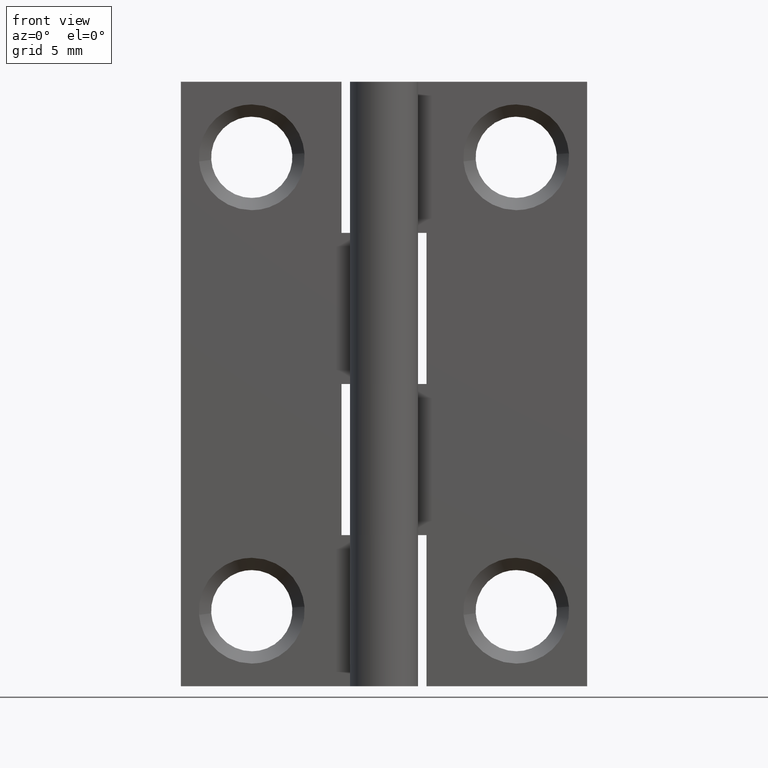
[diagram: clean part render]
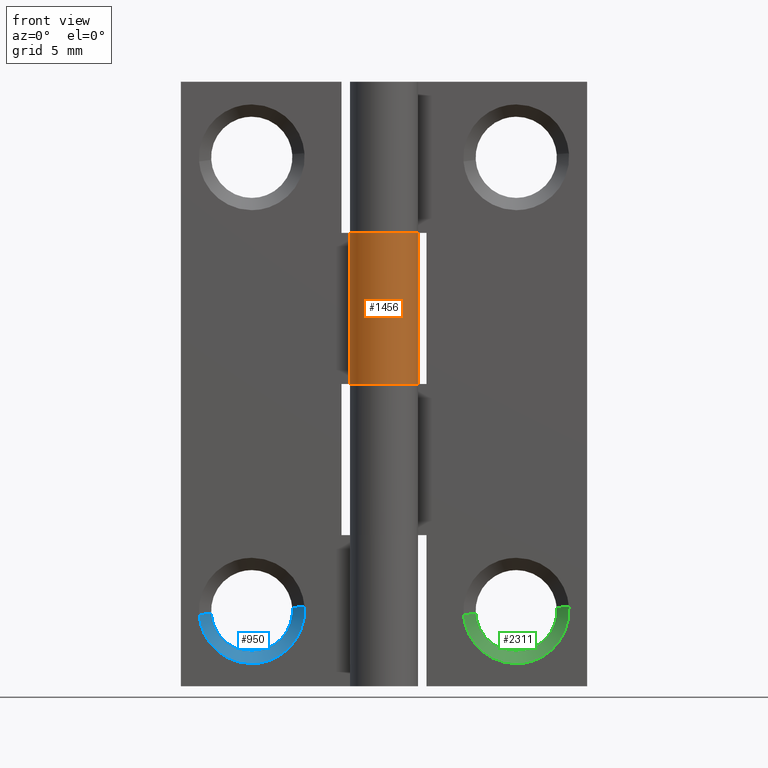
[diagram: same view with three faces highlighted in distinct colors, each labeled with its STEP entity id]
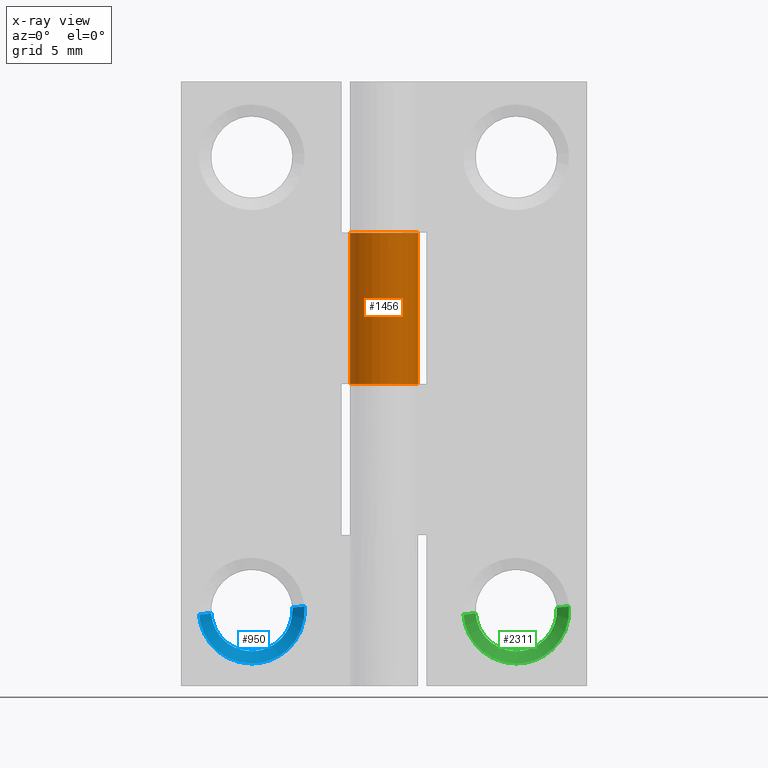
[diagram: x-ray of the same camera — body ghosted, the three highlighted faces saturated]
A machine part, front view with three faces highlighted in distinct colors.
The next image is the same camera in x-ray (body ghosted, the three faces saturated) — at least one of them is partly hidden behind the body in this view.
Their STEP definitions:

[orange] entity #1456 — the highlighted face is a freeform B-spline surface patch.
#1020=CARTESIAN_POINT('',(-1.528888485142075,0.949999999999986,24.0));
#1021=VERTEX_POINT('',#1020);
#1027=CARTESIAN_POINT('',(0.0,1.799999000000000,24.0));
#1028=VERTEX_POINT('',#1027);
#1029=CARTESIAN_POINT('',(0.0,1.799999000000000,24.0));
#1030=CARTESIAN_POINT('',(1.392801052929096,1.799998304105395,24.000000000000011));
#1031=CARTESIAN_POINT('',(1.742381113599921,0.451781698599382,24.0));
#1032=CARTESIAN_POINT('',(2.091961174270749,-0.896434906906632,24.000000000000011));
#1033=CARTESIAN_POINT('',(0.874642784226802,-1.573213772255223,24.0));
#1034=CARTESIAN_POINT('',(-0.342675605817144,-2.249992637603815,24.000000000000011));
#1035=CARTESIAN_POINT('',(-1.303326767780338,-1.241506385276014,24.0));
#1036=CARTESIAN_POINT('',(-2.263977929743532,-0.233020132948214,24.000000000000011));
#1037=CARTESIAN_POINT('',(-1.528888485142075,0.949999999999986,24.0));
#1045=(BOUNDED_CURVE()B_SPLINE_CURVE(2,(#1029,#1030,#1031,#1032,#1033,#1034,#1035,#1036,#1037),.UNSPECIFIED.,.F.,.U.)B_SPLINE_CURVE_WITH_KNOTS((3,2,2,2,3),(0.0,0.250000000000000,0.500000000000000,0.750000000000000,1.0),.UNSPECIFIED.)CURVE()GEOMETRIC_REPRESENTATION_ITEM()RATIONAL_B_SPLINE_CURVE((1.0,0.790882628363956,1.0,0.790882628363956,1.0,0.790882628363956,1.0,0.790882628363956,1.0))REPRESENTATION_ITEM(''));
#1046=EDGE_CURVE('',#1028,#1021,#1045,.T.);
#1048=CARTESIAN_POINT('',(-0.001897366346216,1.799999000000000,24.0));
#1049=VERTEX_POINT('',#1048);
#1050=CARTESIAN_POINT('',(-0.001897366346216,1.799999000000000,24.0));
#1051=CARTESIAN_POINT('',(0.0,1.799999000000000,24.0));
#1052=QUASI_UNIFORM_CURVE('',1,(#1050,#1051),.UNSPECIFIED.,.F.,.U.);
#1053=EDGE_CURVE('',#1049,#1028,#1052,.T.);
#1183=CARTESIAN_POINT('',(-0.001897366346216,1.799998999999940,16.0));
#1184=VERTEX_POINT('',#1183);
#1190=CARTESIAN_POINT('',(0.0,1.799998999999940,16.0));
#1191=VERTEX_POINT('',#1190);
#1192=CARTESIAN_POINT('',(-0.001897366346216,1.799998999999940,16.0));
#1193=CARTESIAN_POINT('',(0.0,1.799998999999940,16.0));
#1194=QUASI_UNIFORM_CURVE('',1,(#1192,#1193),.UNSPECIFIED.,.F.,.U.);
#1195=EDGE_CURVE('',#1184,#1191,#1194,.T.);
#1197=CARTESIAN_POINT('',(-1.528888485142075,0.949999999999986,16.0));
#1198=VERTEX_POINT('',#1197);
#1199=CARTESIAN_POINT('',(0.0,1.799998999999940,16.0));
#1200=CARTESIAN_POINT('',(1.392801052929096,1.799998304105293,15.999999999999998));
#1201=CARTESIAN_POINT('',(1.742381113599921,0.451781698599292,16.0));
#1202=CARTESIAN_POINT('',(2.091961174270749,-0.896434906906709,15.999999999999998));
#1203=CARTESIAN_POINT('',(0.874642784226802,-1.573213772255253,16.0));
#1204=CARTESIAN_POINT('',(-0.342675605817144,-2.249992637603797,15.999999999999998));
#1205=CARTESIAN_POINT('',(-1.303326767780338,-1.241506385275984,16.0));
#1206=CARTESIAN_POINT('',(-2.263977929743532,-0.233020132948172,15.999999999999998));
#1207=CARTESIAN_POINT('',(-1.528888485142075,0.949999999999986,16.0));
#1215=(BOUNDED_CURVE()B_SPLINE_CURVE(2,(#1199,#1200,#1201,#1202,#1203,#1204,#1205,#1206,#1207),.UNSPECIFIED.,.F.,.U.)B_SPLINE_CURVE_WITH_KNOTS((3,2,2,2,3),(0.0,0.250000000000000,0.500000000000000,0.750000000000000,1.0),.UNSPECIFIED.)CURVE()GEOMETRIC_REPRESENTATION_ITEM()RATIONAL_B_SPLINE_CURVE((1.0,0.790882628363956,1.0,0.790882628363956,1.0,0.790882628363956,1.0,0.790882628363956,1.0))REPRESENTATION_ITEM(''));
#1216=EDGE_CURVE('',#1191,#1198,#1215,.T.);
#1418=CARTESIAN_POINT('',(-0.017605049270856,1.799913904118797,15.800000000000001));
#1419=CARTESIAN_POINT('',(-0.017605049270856,1.799913904118797,24.205000000000009));
#1420=CARTESIAN_POINT('',(2.191930709917128,1.821525485549002,15.800000000000001));
#1421=CARTESIAN_POINT('',(2.191930709917128,1.821525485549002,24.205000000000005));
#1422=CARTESIAN_POINT('',(1.766288852308502,-0.346732880198450,15.800000000000001));
#1423=CARTESIAN_POINT('',(1.766288852308502,-0.346732880198450,24.205000000000009));
#1424=CARTESIAN_POINT('',(1.340646994699876,-2.514991245945901,15.800000000000001));
#1425=CARTESIAN_POINT('',(1.340646994699876,-2.514991245945901,24.205000000000005));
#1426=CARTESIAN_POINT('',(-0.696744238231076,-1.659682941555945,15.800000000000001));
#1427=CARTESIAN_POINT('',(-0.696744238231076,-1.659682941555945,24.205000000000009));
#1428=CARTESIAN_POINT('',(-2.734135471162029,-0.804374637165988,15.800000000000001));
#1429=CARTESIAN_POINT('',(-2.734135471162029,-0.804374637165988,24.205000000000005));
#1430=CARTESIAN_POINT('',(-1.484500995525655,1.017966990763126,15.800000000000001));
#1431=CARTESIAN_POINT('',(-1.484500995525655,1.017966990763126,24.205000000000009));
#1439=(BOUNDED_SURFACE()B_SPLINE_SURFACE(1,2,((#1418,#1420,#1422,#1424,#1426,#1428,#1430),(#1419,#1421,#1423,#1425,#1427,#1429,#1431)),.UNSPECIFIED.,.F.,.F.,.U.)B_SPLINE_SURFACE_WITH_KNOTS((2,2),(3,2,2,3),(0.0,8.405000000000007),(0.0,3.421378328518648,6.842756657037295,10.264134985555939),.UNSPECIFIED.)GEOMETRIC_REPRESENTATION_ITEM()RATIONAL_B_SPLINE_SURFACE(((1.0,0.631578351302498,1.0,0.631578351302498,1.0,0.631578351302498,1.0),(1.0,0.631578351302498,1.0,0.631578351302498,1.0,0.631578351302498,1.0)))REPRESENTATION_ITEM('')SURFACE());
#1440=ORIENTED_EDGE('',*,*,#1053,.T.);
#1441=ORIENTED_EDGE('',*,*,#1046,.T.);
#1442=CARTESIAN_POINT('',(-1.528888485142075,0.949999999999986,16.0));
#1443=CARTESIAN_POINT('',(-1.528888485142075,0.949999999999986,24.0));
#1444=QUASI_UNIFORM_CURVE('',1,(#1442,#1443),.UNSPECIFIED.,.F.,.U.);
#1445=EDGE_CURVE('',#1198,#1021,#1444,.T.);
#1446=ORIENTED_EDGE('',*,*,#1445,.F.);
#1447=ORIENTED_EDGE('',*,*,#1216,.F.);
#1448=ORIENTED_EDGE('',*,*,#1195,.F.);
#1449=CARTESIAN_POINT('',(-0.001897366346216,1.799998999999940,16.0));
#1450=CARTESIAN_POINT('',(-0.001897366346216,1.799999000000000,24.0));
#1451=QUASI_UNIFORM_CURVE('',1,(#1449,#1450),.UNSPECIFIED.,.F.,.U.);
#1452=EDGE_CURVE('',#1184,#1049,#1451,.T.);
#1453=ORIENTED_EDGE('',*,*,#1452,.T.);
#1454=EDGE_LOOP('',(#1440,#1441,#1446,#1447,#1448,#1453));
#1455=FACE_OUTER_BOUND('',#1454,.T.);
#1456=ADVANCED_FACE('',(#1455),#1439,.T.);

[blue] entity #950 — the highlighted face is a freeform B-spline surface patch.
#641=CARTESIAN_POINT('',(-4.864041251879778,1.650000035762785,3.754683572831546));
#642=VERTEX_POINT('',#641);
#643=CARTESIAN_POINT('',(-7.0,1.650000035762785,1.850000023841860));
#644=VERTEX_POINT('',#643);
#645=CARTESIAN_POINT('',(-4.864041251879778,1.650000035762785,3.754683572831545));
#646=CARTESIAN_POINT('',(-5.082795558995315,1.650000035762784,1.850000023841861));
#647=CARTESIAN_POINT('',(-7.0,1.650000035762785,1.850000023841860));
#655=(BOUNDED_CURVE()B_SPLINE_CURVE(2,(#645,#646,#647),.UNSPECIFIED.,.F.,.U.)B_SPLINE_CURVE_WITH_KNOTS((3,3),(0.269767755879297,0.500000000000000),.UNSPECIFIED.)CURVE()GEOMETRIC_REPRESENTATION_ITEM()RATIONAL_B_SPLINE_CURVE((0.957343736455363,0.730266147779370,1.0))REPRESENTATION_ITEM(''));
#656=EDGE_CURVE('',#642,#644,#655,.T.);
#695=CARTESIAN_POINT('',(-9.145989798755313,1.650000035762785,3.868745641031884));
#696=VERTEX_POINT('',#695);
#702=CARTESIAN_POINT('',(-7.0,1.650000035762785,1.850000023841860));
#703=CARTESIAN_POINT('',(-9.022518021362590,1.650000035762785,1.850000023841860));
#704=CARTESIAN_POINT('',(-9.145989798755313,1.650000035762785,3.868745641031884));
#712=(BOUNDED_CURVE()B_SPLINE_CURVE(2,(#702,#703,#704),.UNSPECIFIED.,.F.,.U.)B_SPLINE_CURVE_WITH_KNOTS((3,3),(0.500000000000000,0.739332962237160),.UNSPECIFIED.)CURVE()GEOMETRIC_REPRESENTATION_ITEM()RATIONAL_B_SPLINE_CURVE((1.0,0.719603993288799,0.976072041662896))REPRESENTATION_ITEM(''));
#713=EDGE_CURVE('',#644,#696,#712,.T.);
#740=CARTESIAN_POINT('',(-4.856627756236048,1.650000035747365,4.168687054063430));
#741=VERTEX_POINT('',#740);
#742=CARTESIAN_POINT('',(-4.856627756236048,1.650000035747365,4.168687054063430));
#743=CARTESIAN_POINT('',(-4.850000023841861,1.650000035762785,4.084473729248252));
#744=CARTESIAN_POINT('',(-4.850000023841860,1.650000035762785,4.0));
#745=CARTESIAN_POINT('',(-4.850000023841860,1.650000035762785,3.876939946043139));
#746=CARTESIAN_POINT('',(-4.864041251879778,1.650000035762786,3.754683572831546));
#754=(BOUNDED_CURVE()B_SPLINE_CURVE(2,(#742,#743,#744,#745,#746),.UNSPECIFIED.,.F.,.U.)B_SPLINE_CURVE_WITH_KNOTS((3,2,3),(0.236331300613898,0.250000000000000,0.269767755879296),.UNSPECIFIED.)CURVE()GEOMETRIC_REPRESENTATION_ITEM()RATIONAL_B_SPLINE_CURVE((0.969723356132437,0.983986122559244,1.0,0.976840633407177,0.957343736455363))REPRESENTATION_ITEM(''));
#755=EDGE_CURVE('',#741,#642,#754,.T.);
#843=CARTESIAN_POINT('',(-4.208631453662765,0.999999999999246,4.219685468979115));
#844=VERTEX_POINT('',#843);
#845=CARTESIAN_POINT('',(-4.856627756236048,1.650000035747365,4.168687054063430));
#846=CARTESIAN_POINT('',(-4.208631453662765,0.999999999999246,4.219685468979115));
#847=QUASI_UNIFORM_CURVE('',1,(#845,#846),.UNSPECIFIED.,.F.,.U.);
#848=EDGE_CURVE('',#741,#844,#847,.T.);
#865=CARTESIAN_POINT('',(-9.791368546337235,0.999999999999246,3.780314531020885));
#866=VERTEX_POINT('',#865);
#882=CARTESIAN_POINT('',(-9.145989798755313,1.650000035762785,3.868745641031884));
#883=CARTESIAN_POINT('',(-9.791368546337235,0.999999999999246,3.780314531020885));
#884=QUASI_UNIFORM_CURVE('',1,(#882,#883),.UNSPECIFIED.,.F.,.U.);
#885=EDGE_CURVE('',#696,#866,#884,.T.);
#891=CARTESIAN_POINT('',(-9.132407769470440,1.666250036656855,3.899110393532266));
#892=CARTESIAN_POINT('',(-9.129807117770858,1.666250036656855,3.866065980589901));
#893=CARTESIAN_POINT('',(-8.959760242624856,1.666250036656856,1.705415570238081));
#894=CARTESIAN_POINT('',(-6.832587906431468,1.666250036656855,1.872827663806612));
#895=CARTESIAN_POINT('',(-4.705415570238080,1.666250036656856,2.040239757375144));
#896=CARTESIAN_POINT('',(-4.874015251140255,1.666250036656854,4.182501821371890));
#897=CARTESIAN_POINT('',(-4.875195879834045,1.666250036656855,4.197503131272576));
#898=CARTESIAN_POINT('',(-9.814884484326052,0.983343749083578,3.866820693517586));
#899=CARTESIAN_POINT('',(-9.811451494527807,0.983343749083579,3.823200422283896));
#900=CARTESIAN_POINT('',(-9.586981148232136,0.983343749083579,0.971034245051081));
#901=CARTESIAN_POINT('',(-6.779007696641608,0.983343749083579,1.192026548409472));
#902=CARTESIAN_POINT('',(-3.971034245051081,0.983343749083579,1.413018851767864));
#903=CARTESIAN_POINT('',(-4.193594222851067,0.983343749083579,4.240911495772948));
#904=CARTESIAN_POINT('',(-4.195152711541399,0.983343749083578,4.260713972151326));
#912=(BOUNDED_SURFACE()B_SPLINE_SURFACE(2,1,((#891,#898),(#892,#899),(#893,#900),(#894,#901),(#895,#902),(#896,#903),(#897,#904)),.UNSPECIFIED.,.F.,.F.,.U.)B_SPLINE_SURFACE_WITH_KNOTS((3,1,2,1,3),(2,2),(0.0,0.104551769184363,4.771340667625754,9.438129566067147,9.485085433693241),(0.0,1.0),.UNSPECIFIED.)GEOMETRIC_REPRESENTATION_ITEM()RATIONAL_B_SPLINE_SURFACE(((1.013123586635460,1.013123586635460),(1.006561793317730,1.006561793317730),(0.707106781186548,0.707106781186548),(1.0,1.0),(0.707106781186548,0.707106781186548),(1.002947006070015,1.002947006070015),(1.005894012140030,1.005894012140030)))REPRESENTATION_ITEM('')SURFACE());
#913=ORIENTED_EDGE('',*,*,#755,.T.);
#914=ORIENTED_EDGE('',*,*,#656,.T.);
#915=ORIENTED_EDGE('',*,*,#713,.T.);
#916=ORIENTED_EDGE('',*,*,#885,.T.);
#917=CARTESIAN_POINT('',(-7.0,1.0,1.199999988079070));
#918=VERTEX_POINT('',#917);
#919=CARTESIAN_POINT('',(-7.0,1.0,1.199999988079070));
#920=CARTESIAN_POINT('',(-9.588293387651801,1.0,1.199999988079070));
#921=CARTESIAN_POINT('',(-9.791368546337235,0.999999999999246,3.780314531020884));
#929=(BOUNDED_CURVE()B_SPLINE_CURVE(2,(#919,#920,#921),.UNSPECIFIED.,.F.,.U.)B_SPLINE_CURVE_WITH_KNOTS((3,3),(0.500000000000000,0.736331300632056),.UNSPECIFIED.)CURVE()GEOMETRIC_REPRESENTATION_ITEM()RATIONAL_B_SPLINE_CURVE((1.0,0.723120658606030,0.969723356170331))REPRESENTATION_ITEM(''));
#930=EDGE_CURVE('',#918,#866,#929,.T.);
#931=ORIENTED_EDGE('',*,*,#930,.F.);
#932=CARTESIAN_POINT('',(-4.208631453662765,0.999999999999246,4.219685468979115));
#933=CARTESIAN_POINT('',(-4.199999988079071,1.0,4.110012300095660));
#934=CARTESIAN_POINT('',(-4.199999988079070,1.0,4.0));
#935=CARTESIAN_POINT('',(-4.199999988079069,1.0,1.199999988079070));
#936=CARTESIAN_POINT('',(-7.0,1.0,1.199999988079070));
#944=(BOUNDED_CURVE()B_SPLINE_CURVE(2,(#932,#933,#934,#935,#936),.UNSPECIFIED.,.F.,.U.)B_SPLINE_CURVE_WITH_KNOTS((3,2,3),(0.236331300632057,0.250000000000000,0.500000000000000),.UNSPECIFIED.)CURVE()GEOMETRIC_REPRESENTATION_ITEM()RATIONAL_B_SPLINE_CURVE((0.969723356170333,0.983986122580519,1.0,0.707106781186548,1.0))REPRESENTATION_ITEM(''));
#945=EDGE_CURVE('',#844,#918,#944,.T.);
#946=ORIENTED_EDGE('',*,*,#945,.F.);
#947=ORIENTED_EDGE('',*,*,#848,.F.);
#948=EDGE_LOOP('',(#913,#914,#915,#916,#931,#946,#947));
#949=FACE_OUTER_BOUND('',#948,.T.);
#950=ADVANCED_FACE('',(#949),#912,.F.);

[green] entity #2311 — the highlighted face is a freeform B-spline surface patch.
#2002=CARTESIAN_POINT('',(9.135958792531758,1.650000035762785,3.754683567730848));
#2003=VERTEX_POINT('',#2002);
#2004=CARTESIAN_POINT('',(7.0,1.650000035762785,1.849999964237215));
#2005=VERTEX_POINT('',#2004);
#2006=CARTESIAN_POINT('',(9.135958792531758,1.650000035762786,3.754683567730847));
#2007=CARTESIAN_POINT('',(8.917204494155520,1.650000035762786,1.849999964237215));
#2008=CARTESIAN_POINT('',(7.0,1.650000035762785,1.849999964237215));
#2016=(BOUNDED_CURVE()B_SPLINE_CURVE(2,(#2006,#2007,#2008),.UNSPECIFIED.,.F.,.U.)B_SPLINE_CURVE_WITH_KNOTS((3,3),(0.269767755879297,0.500000000000000),.UNSPECIFIED.)CURVE()GEOMETRIC_REPRESENTATION_ITEM()RATIONAL_B_SPLINE_CURVE((0.957343736455363,0.730266147779370,1.0))REPRESENTATION_ITEM(''));
#2017=EDGE_CURVE('',#2003,#2005,#2016,.T.);
#2056=CARTESIAN_POINT('',(4.854010156624582,1.650000035762785,3.868745638302801));
#2057=VERTEX_POINT('',#2056);
#2063=CARTESIAN_POINT('',(7.0,1.650000035762785,1.849999964237215));
#2064=CARTESIAN_POINT('',(4.977481922566960,1.650000035762785,1.849999964237215));
#2065=CARTESIAN_POINT('',(4.854010156624582,1.650000035762786,3.868745638302801));
#2073=(BOUNDED_CURVE()B_SPLINE_CURVE(2,(#2063,#2064,#2065),.UNSPECIFIED.,.F.,.U.)B_SPLINE_CURVE_WITH_KNOTS((3,3),(0.500000000000000,0.739332962237160),.UNSPECIFIED.)CURVE()GEOMETRIC_REPRESENTATION_ITEM()RATIONAL_B_SPLINE_CURVE((1.0,0.719603993288799,0.976072041662896))REPRESENTATION_ITEM(''));
#2074=EDGE_CURVE('',#2005,#2057,#2073,.T.);
#2101=CARTESIAN_POINT('',(9.143372303184854,1.650000035747365,4.168687058739958));
#2102=VERTEX_POINT('',#2101);
#2103=CARTESIAN_POINT('',(9.143372303184854,1.650000035747365,4.168687058739958));
#2104=CARTESIAN_POINT('',(9.150000035762785,1.650000035762785,4.084473731590125));
#2105=CARTESIAN_POINT('',(9.150000035762785,1.650000035762785,4.0));
#2106=CARTESIAN_POINT('',(9.150000035762783,1.650000035762785,3.876939942631532));
#2107=CARTESIAN_POINT('',(9.135958792531758,1.650000035762785,3.754683567730848));
#2115=(BOUNDED_CURVE()B_SPLINE_CURVE(2,(#2103,#2104,#2105,#2106,#2107),.UNSPECIFIED.,.F.,.U.)B_SPLINE_CURVE_WITH_KNOTS((3,2,3),(0.236331300613898,0.250000000000000,0.269767755879297),.UNSPECIFIED.)CURVE()GEOMETRIC_REPRESENTATION_ITEM()RATIONAL_B_SPLINE_CURVE((0.969723356132437,0.983986122559244,1.0,0.976840633407177,0.957343736455363))REPRESENTATION_ITEM(''));
#2116=EDGE_CURVE('',#2102,#2003,#2115,.T.);
#2204=CARTESIAN_POINT('',(9.791368486916332,1.000000059603889,4.219685464302588));
#2205=VERTEX_POINT('',#2204);
#2206=CARTESIAN_POINT('',(9.143372303184854,1.650000035747365,4.168687058739958));
#2207=CARTESIAN_POINT('',(9.791368486916332,1.000000059603889,4.219685464302588));
#2208=QUASI_UNIFORM_CURVE('',1,(#2206,#2207),.UNSPECIFIED.,.F.,.U.);
#2209=EDGE_CURVE('',#2102,#2205,#2208,.T.);
#2226=CARTESIAN_POINT('',(4.208631513083668,1.000000059603889,3.780314535697411));
#2227=VERTEX_POINT('',#2226);
#2243=CARTESIAN_POINT('',(4.854010156624582,1.650000035762785,3.868745638302801));
#2244=CARTESIAN_POINT('',(4.208631513083668,1.000000059603889,3.780314535697411));
#2245=QUASI_UNIFORM_CURVE('',1,(#2243,#2244),.UNSPECIFIED.,.F.,.U.);
#2246=EDGE_CURVE('',#2057,#2227,#2245,.T.);
#2252=CARTESIAN_POINT('',(4.867592168279850,1.666250035166738,3.899110386814593));
#2253=CARTESIAN_POINT('',(4.870192819909747,1.666250035166739,3.866065974757666));
#2254=CARTESIAN_POINT('',(5.040239699893550,1.666250035166738,1.705415502935779));
#2255=CARTESIAN_POINT('',(7.167412098478885,1.666250035166739,1.872827601414664));
#2256=CARTESIAN_POINT('',(9.294584497064220,1.666250035166738,2.040239699893550));
#2257=CARTESIAN_POINT('',(9.125984811217617,1.666250035166739,4.182501826715286));
#2258=CARTESIAN_POINT('',(9.124804182489937,1.666250035166739,4.197503137046531));
#2259=CARTESIAN_POINT('',(4.185115578684384,0.983343810215591,3.866820691518905));
#2260=CARTESIAN_POINT('',(4.188548568213577,0.983343810215591,3.823200423703838));
#2261=CARTESIAN_POINT('',(4.413018909317890,0.983343810215591,0.971034312433504));
#2262=CARTESIAN_POINT('',(7.220992298442193,0.983343810215591,1.192026610875697));
#2263=CARTESIAN_POINT('',(10.028965687566496,0.983343810215591,1.413018909317890));
#2264=CARTESIAN_POINT('',(9.806405714718583,0.983343810215592,4.240911490401015));
#2265=CARTESIAN_POINT('',(9.804847226063895,0.983343810215591,4.260713966326400));
#2273=(BOUNDED_SURFACE()B_SPLINE_SURFACE(2,1,((#2252,#2259),(#2253,#2260),(#2254,#2261),(#2255,#2262),(#2256,#2263),(#2257,#2264),(#2258,#2265)),.UNSPECIFIED.,.F.,.F.,.U.)B_SPLINE_SURFACE_WITH_KNOTS((3,1,2,1,3),(2,2),(0.0,0.104551760873861,4.771340555497788,9.438129350121715,9.485085216673408),(0.0,1.0),.UNSPECIFIED.)GEOMETRIC_REPRESENTATION_ITEM()RATIONAL_B_SPLINE_SURFACE(((1.013123585884254,1.013123585884254),(1.006561792942127,1.006561792942127),(0.707106781186548,0.707106781186548),(1.0,1.0),(0.707106781186548,0.707106781186548),(1.002947006068143,1.002947006068143),(1.005894012136287,1.005894012136287)))REPRESENTATION_ITEM('')SURFACE());
#2274=ORIENTED_EDGE('',*,*,#2116,.T.);
#2275=ORIENTED_EDGE('',*,*,#2017,.T.);
#2276=ORIENTED_EDGE('',*,*,#2074,.T.);
#2277=ORIENTED_EDGE('',*,*,#2246,.T.);
#2278=CARTESIAN_POINT('',(7.0,1.000000059604644,1.200000047683715));
#2279=VERTEX_POINT('',#2278);
#2280=CARTESIAN_POINT('',(7.0,1.000000059604644,1.200000047683715));
#2281=CARTESIAN_POINT('',(4.411706667446166,1.000000059604644,1.200000047683715));
#2282=CARTESIAN_POINT('',(4.208631513083668,1.000000059603889,3.780314535697410));
#2290=(BOUNDED_CURVE()B_SPLINE_CURVE(2,(#2280,#2281,#2282),.UNSPECIFIED.,.F.,.U.)B_SPLINE_CURVE_WITH_KNOTS((3,3),(0.500000000000000,0.736331300632056),.UNSPECIFIED.)CURVE()GEOMETRIC_REPRESENTATION_ITEM()RATIONAL_B_SPLINE_CURVE((1.0,0.723120658606030,0.969723356170331))REPRESENTATION_ITEM(''));
#2291=EDGE_CURVE('',#2279,#2227,#2290,.T.);
#2292=ORIENTED_EDGE('',*,*,#2291,.F.);
#2293=CARTESIAN_POINT('',(9.791368486916332,1.000000059603889,4.219685464302588));
#2294=CARTESIAN_POINT('',(9.799999952316282,1.000000059604644,4.110012297753787));
#2295=CARTESIAN_POINT('',(9.799999952316284,1.000000059604644,4.0));
#2296=CARTESIAN_POINT('',(9.799999952316284,1.000000059604644,1.200000047683715));
#2297=CARTESIAN_POINT('',(7.0,1.000000059604644,1.200000047683715));
#2305=(BOUNDED_CURVE()B_SPLINE_CURVE(2,(#2293,#2294,#2295,#2296,#2297),.UNSPECIFIED.,.F.,.U.)B_SPLINE_CURVE_WITH_KNOTS((3,2,3),(0.236331300632057,0.250000000000000,0.500000000000000),.UNSPECIFIED.)CURVE()GEOMETRIC_REPRESENTATION_ITEM()RATIONAL_B_SPLINE_CURVE((0.969723356170333,0.983986122580519,1.0,0.707106781186547,1.0))REPRESENTATION_ITEM(''));
#2306=EDGE_CURVE('',#2205,#2279,#2305,.T.);
#2307=ORIENTED_EDGE('',*,*,#2306,.F.);
#2308=ORIENTED_EDGE('',*,*,#2209,.F.);
#2309=EDGE_LOOP('',(#2274,#2275,#2276,#2277,#2292,#2307,#2308));
#2310=FACE_OUTER_BOUND('',#2309,.T.);
#2311=ADVANCED_FACE('',(#2310),#2273,.F.);